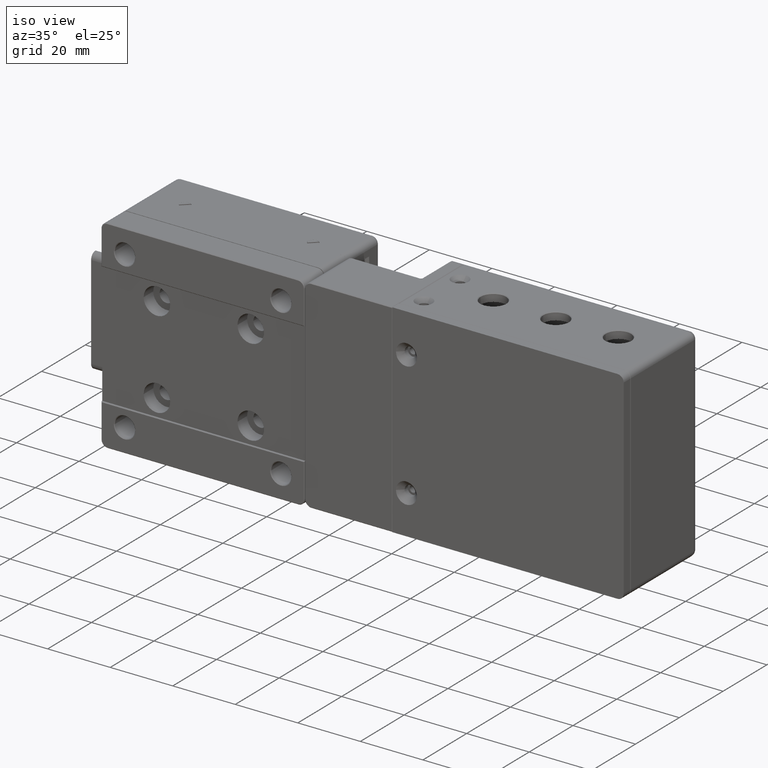
[diagram: clean part render]
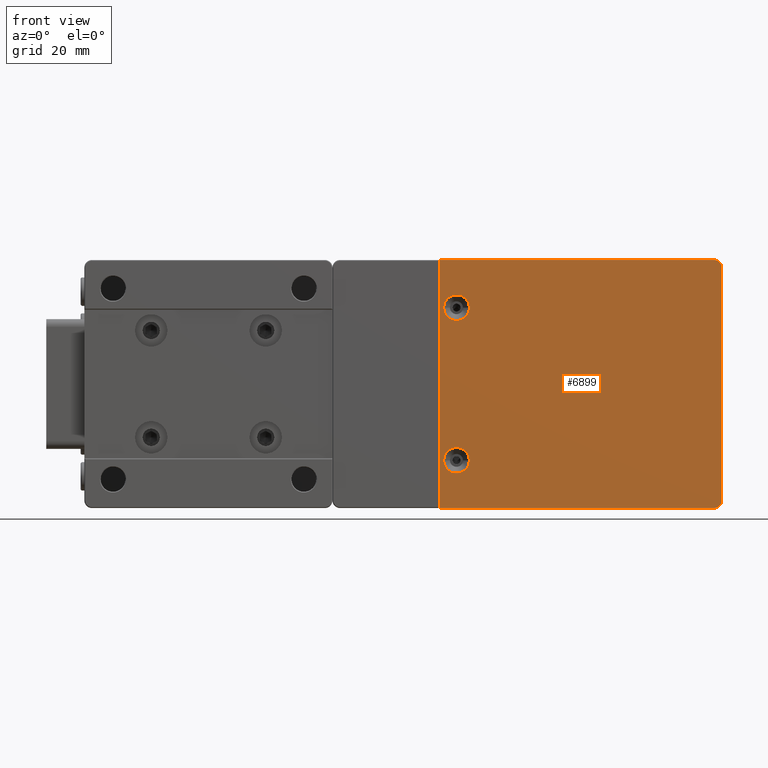
[diagram: tour spotlight — one face highlighted and labeled with its STEP entity id]
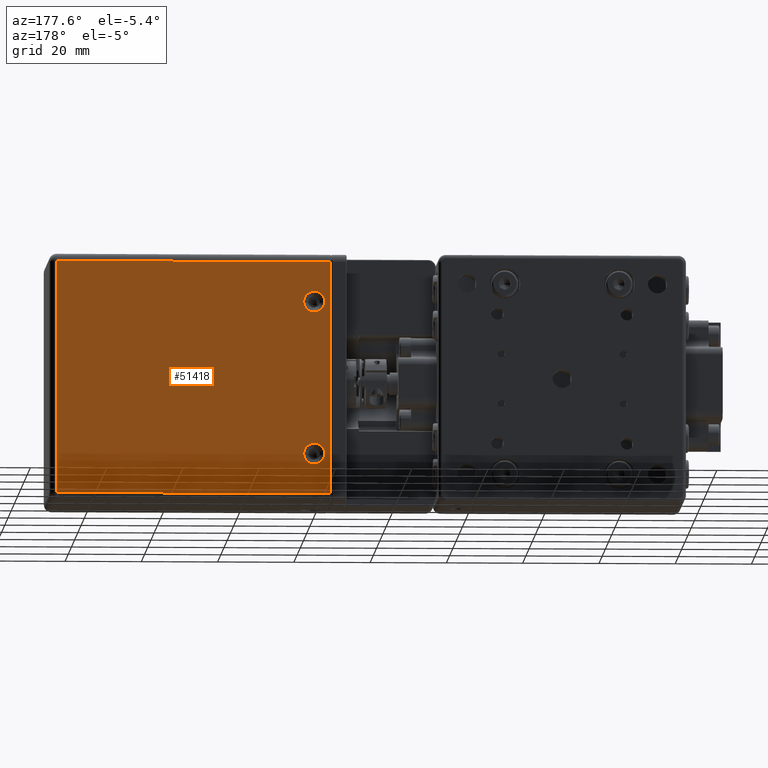
[diagram: tour spotlight — one face highlighted and labeled with its STEP entity id]
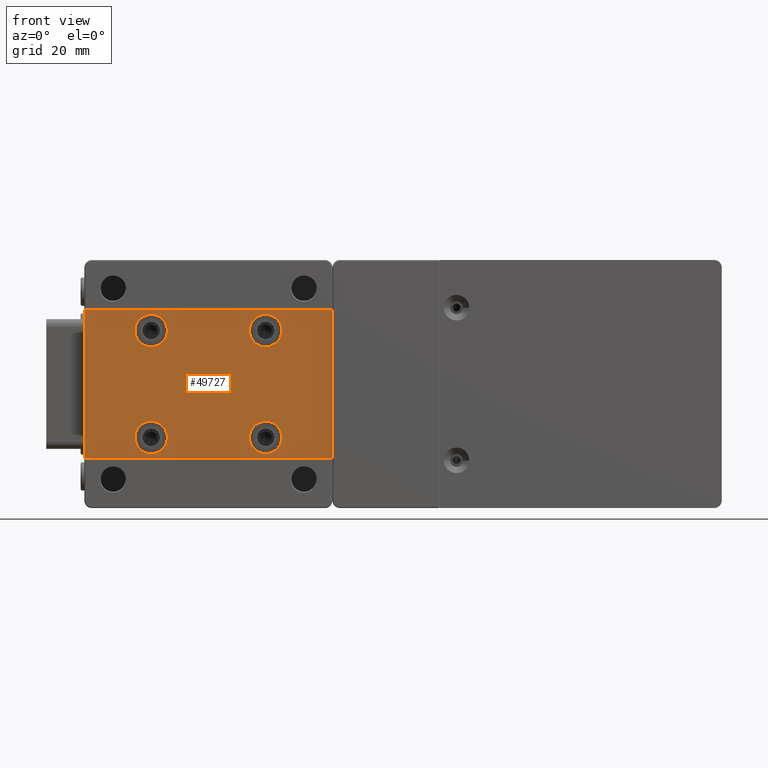
[diagram: tour spotlight — one face highlighted and labeled with its STEP entity id]
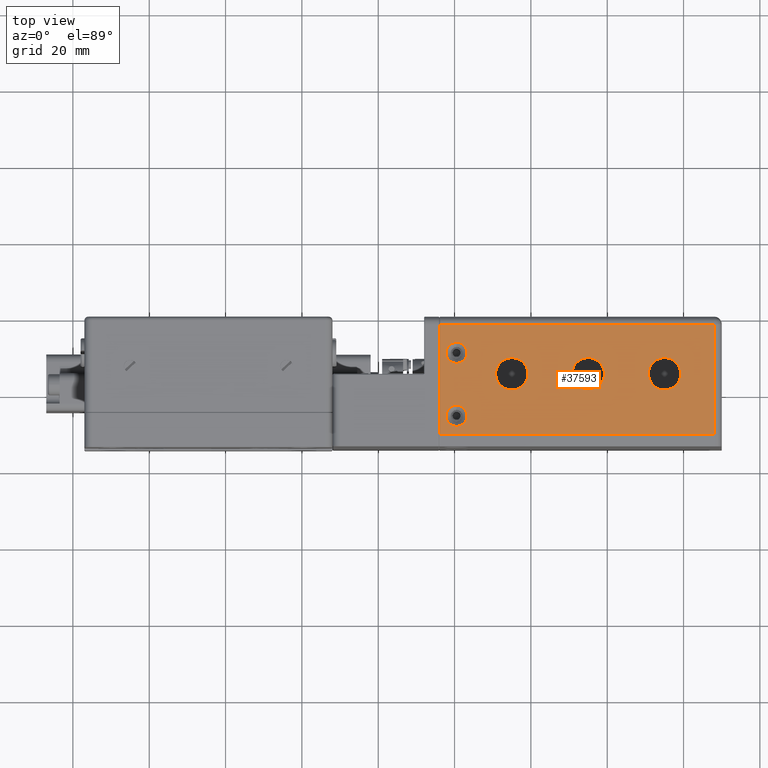
[diagram: tour spotlight — one face highlighted and labeled with its STEP entity id]
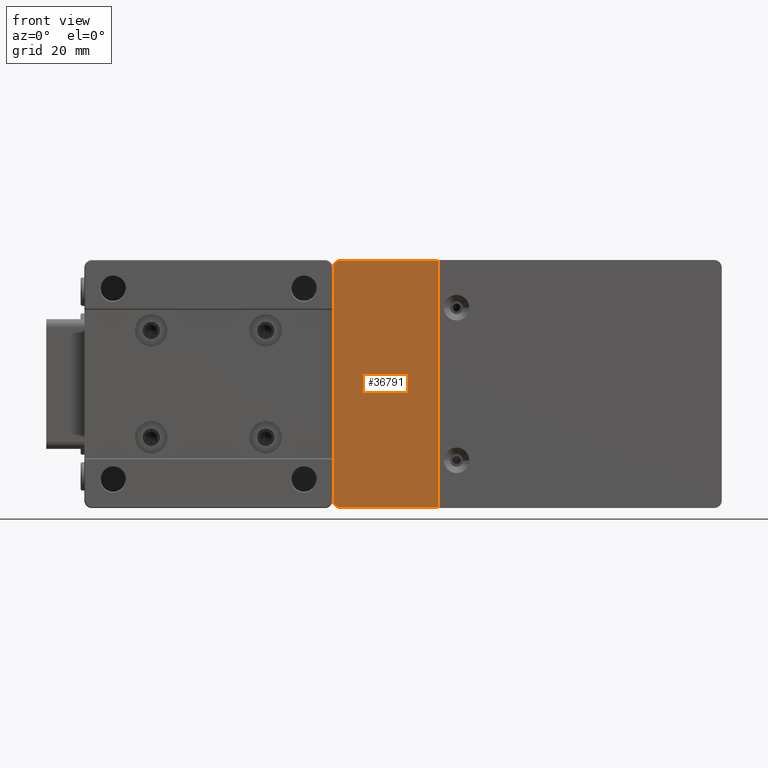
[diagram: tour spotlight — one face highlighted and labeled with its STEP entity id]
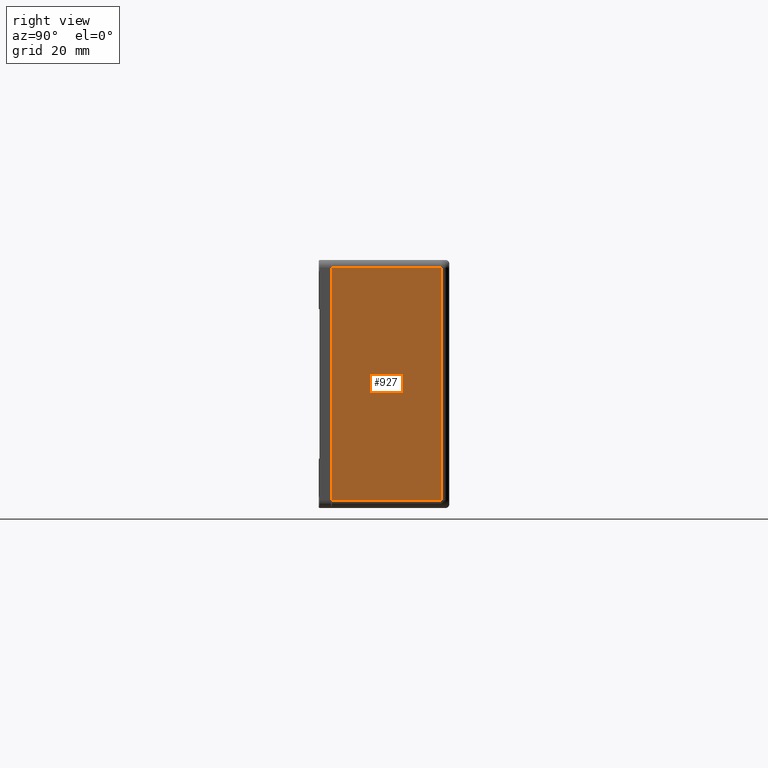
[diagram: tour spotlight — one face highlighted and labeled with its STEP entity id]
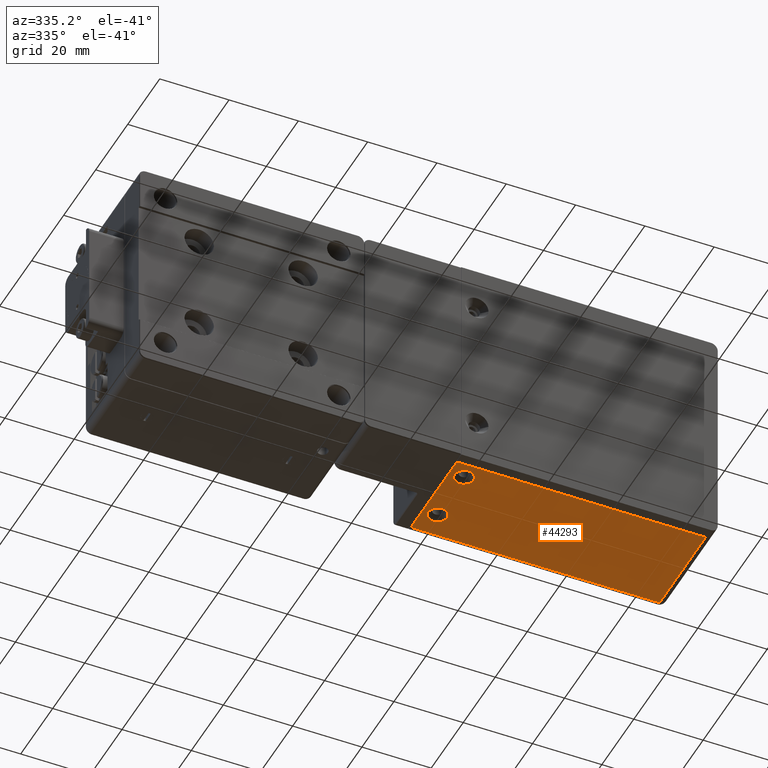
[diagram: tour spotlight — one face highlighted and labeled with its STEP entity id]
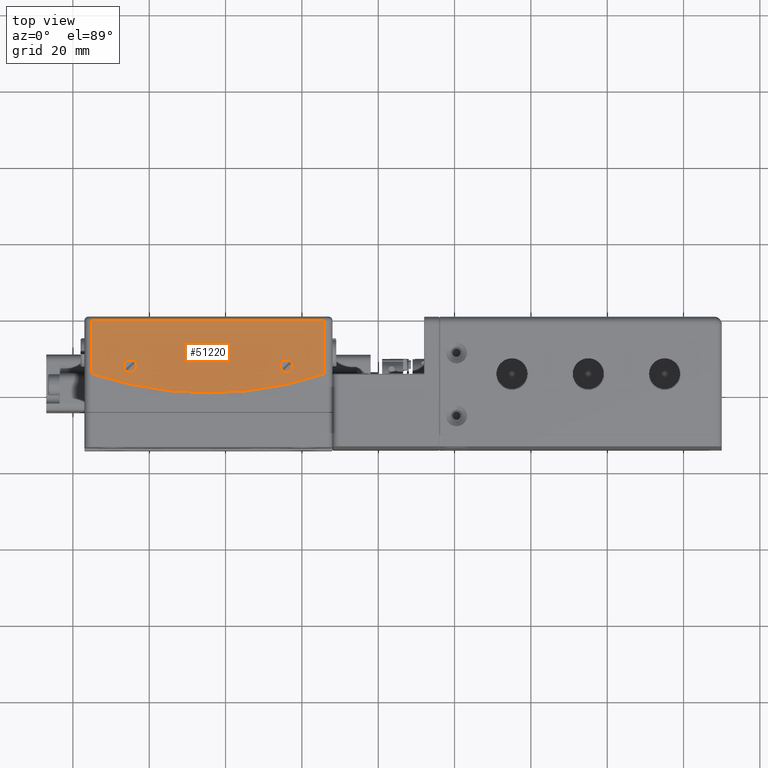
[diagram: tour spotlight — one face highlighted and labeled with its STEP entity id]
A machine part: a face-by-face anatomy tour. The part has 1693 B-rep faces; the first image is the clean iso view, then the 8 largest visible faces are spotlighted one at a time (largest first), each with its STEP entity span.

Face 1 — front view, entity #6899. In plain terms, the highlighted planar face has unit normal (-0, -1, 0).
Definition (entity closure, byte-faithful):
#155 = CARTESIAN_POINT ( 'NONE',  ( -43.98615177131389231, -13.99778983043630021, 32.50000000000000000 ) ) ;
#1594 = DIRECTION ( 'NONE',  ( 0.000000000000000000, -1.000000000000000000, 5.551115123125779621E-17 ) ) ;
#1596 = DIRECTION ( 'NONE',  ( 1.000000000000000000, 0.000000000000000000, 0.000000000000000000 ) ) ;
#2242 = CIRCLE ( 'NONE', #5030, 3.360000000000002096 ) ;
#2417 = DIRECTION ( 'NONE',  ( 1.000000000000000000, 0.000000000000000000, 0.000000000000000000 ) ) ;
#2528 = CARTESIAN_POINT ( 'NONE',  ( 28.01384822868609703, -13.99778983043630021, -32.50000000000000000 ) ) ;
#2554 = DIRECTION ( 'NONE',  ( 0.000000000000000000, -1.000000000000000000, 5.551115123125779621E-17 ) ) ;
#2834 = CARTESIAN_POINT ( 'NONE',  ( -39.48615177131389942, -13.99778983043630021, 20.00000000000000000 ) ) ;
#3246 = ORIENTED_EDGE ( 'NONE', *, *, #16591, .F. ) ;
#4669 = DIRECTION ( 'NONE',  ( 0.000000000000000000, -1.000000000000000000, 5.551115123125779621E-17 ) ) ;
#5030 = AXIS2_PLACEMENT_3D ( 'NONE', #53031, #10092, #1596 ) ;
#5258 = DIRECTION ( 'NONE',  ( -1.000000000000000000, 6.899521432950079395E-17, 0.000000000000000000 ) ) ;
#6013 = LINE ( 'NONE', #31693, #50579 ) ;
#6307 = EDGE_CURVE ( 'NONE', #39944, #41258, #6013, .T. ) ;
#6644 = CIRCLE ( 'NONE', #42727, 3.360000000000002096 ) ;
#6899 = ADVANCED_FACE ( 'NONE', ( #26717, #29845, #42836 ), #30124, .T. ) ;
#7984 = CARTESIAN_POINT ( 'NONE',  ( 28.01384822868609703, -13.99778983043630021, -30.50000000000000000 ) ) ;
#8330 = AXIS2_PLACEMENT_3D ( 'NONE', #53299, #1594, #2417 ) ;
#9165 = DIRECTION ( 'NONE',  ( 0.000000000000000000, -1.000000000000000000, 5.551115123125779621E-17 ) ) ;
#9193 = DIRECTION ( 'NONE',  ( -1.000000000000000000, 6.899521432950079395E-17, 2.375931322540905192E-16 ) ) ;
#9750 = CARTESIAN_POINT ( 'NONE',  ( -43.98615177131389231, -13.99778983043630021, 32.50000000000000000 ) ) ;
#10092 = DIRECTION ( 'NONE',  ( 0.000000000000000000, -1.000000000000000000, 5.551115123125779621E-17 ) ) ;
#10241 = DIRECTION ( 'NONE',  ( 2.149671450824984613E-17, 1.473078375722293951E-32, 1.000000000000000000 ) ) ;
#10297 = LINE ( 'NONE', #9750, #15660 ) ;
#10349 = EDGE_LOOP ( 'NONE', ( #3246, #29565 ) ) ;
#11739 = CARTESIAN_POINT ( 'NONE',  ( -36.12615177131394262, -13.99778983043630021, 20.00000000000000000 ) ) ;
#13259 = CARTESIAN_POINT ( 'NONE',  ( -36.12615177131394262, -13.99778983043630021, -20.00000000000000000 ) ) ;
#14428 = CARTESIAN_POINT ( 'NONE',  ( 30.01384822868609703, -13.99778983043630021, 30.50000000000000000 ) ) ;
#14704 = CARTESIAN_POINT ( 'NONE',  ( -43.98615177131394205, -13.99778983043630021, -32.50000000000000000 ) ) ;
#15016 = ORIENTED_EDGE ( 'NONE', *, *, #24854, .F. ) ;
#15660 = VECTOR ( 'NONE', #9193, 1000.000000000000000 ) ;
#16591 = EDGE_CURVE ( 'NONE', #54430, #22774, #44386, .T. ) ;
#17511 = ORIENTED_EDGE ( 'NONE', *, *, #46911, .T. ) ;
#20669 = DIRECTION ( 'NONE',  ( 0.000000000000000000, -1.000000000000000000, 5.551115123125779621E-17 ) ) ;
#21870 = DIRECTION ( 'NONE',  ( 1.000000000000000000, 0.000000000000000000, 0.000000000000000000 ) ) ;
#22774 = VERTEX_POINT ( 'NONE', #38987 ) ;
#24106 = VERTEX_POINT ( 'NONE', #11739 ) ;
#24418 = CARTESIAN_POINT ( 'NONE',  ( -43.98615177131389231, -13.99778983043630021, 32.50000000000000000 ) ) ;
#24854 = EDGE_CURVE ( 'NONE', #24106, #32540, #34321, .T. ) ;
#25023 = AXIS2_PLACEMENT_3D ( 'NONE', #7984, #20669, #39052 ) ;
#25599 = EDGE_CURVE ( 'NONE', #45171, #35228, #10297, .T. ) ;
#26717 = FACE_BOUND ( 'NONE', #10349, .T. ) ;
#26873 = LINE ( 'NONE', #35653, #46873 ) ;
#27508 = DIRECTION ( 'NONE',  ( 1.000000000000000000, 0.000000000000000000, 0.000000000000000000 ) ) ;
#28914 = CARTESIAN_POINT ( 'NONE',  ( -42.84615177131389885, -13.99778983043630021, 20.00000000000000000 ) ) ;
#29565 = ORIENTED_EDGE ( 'NONE', *, *, #39494, .F. ) ;
#29845 = FACE_BOUND ( 'NONE', #45747, .T. ) ;
#30124 = PLANE ( 'NONE',  #37241 ) ;
#30941 = CARTESIAN_POINT ( 'NONE',  ( 30.01384822868609703, -13.99778983043630021, -30.50000000000000000 ) ) ;
#31693 = CARTESIAN_POINT ( 'NONE',  ( 30.01384822868609703, -13.99778983043630021, 32.50000000000000000 ) ) ;
#32540 = VERTEX_POINT ( 'NONE', #28914 ) ;
#33039 = CARTESIAN_POINT ( 'NONE',  ( -43.98615177131394205, -13.99778983043630021, -32.50000000000000000 ) ) ;
#34321 = CIRCLE ( 'NONE', #51446, 3.360000000000002096 ) ;
#35138 = ORIENTED_EDGE ( 'NONE', *, *, #44066, .T. ) ;
#35148 = ORIENTED_EDGE ( 'NONE', *, *, #43506, .F. ) ;
#35228 = VERTEX_POINT ( 'NONE', #24418 ) ;
#35653 = CARTESIAN_POINT ( 'NONE',  ( -43.98615177131389231, -13.99778983043630021, 32.50000000000000000 ) ) ;
#37105 = ORIENTED_EDGE ( 'NONE', *, *, #50430, .T. ) ;
#37241 = AXIS2_PLACEMENT_3D ( 'NONE', #155, #38605, #5258 ) ;
#38605 = DIRECTION ( 'NONE',  ( -6.899521432950079395E-17, -1.000000000000000000, 5.551115123125779621E-17 ) ) ;
#38987 = CARTESIAN_POINT ( 'NONE',  ( -42.84615177131394859, -13.99778983043630021, -20.00000000000000000 ) ) ;
#39052 = DIRECTION ( 'NONE',  ( 1.000000000000000000, 0.000000000000000000, 0.000000000000000000 ) ) ;
#39494 = EDGE_CURVE ( 'NONE', #22774, #54430, #2242, .T. ) ;
#39944 = VERTEX_POINT ( 'NONE', #30941 ) ;
#40156 = LINE ( 'NONE', #14704, #54499 ) ;
#41106 = EDGE_LOOP ( 'NONE', ( #35138, #17511, #48112, #43823, #47395, #37105 ) ) ;
#41258 = VERTEX_POINT ( 'NONE', #14428 ) ;
#42476 = EDGE_CURVE ( 'NONE', #41258, #45171, #51706, .T. ) ;
#42727 = AXIS2_PLACEMENT_3D ( 'NONE', #51002, #4669, #21870 ) ;
#42836 = FACE_OUTER_BOUND ( 'NONE', #41106, .T. ) ;
#43506 = EDGE_CURVE ( 'NONE', #32540, #24106, #6644, .T. ) ;
#43823 = ORIENTED_EDGE ( 'NONE', *, *, #42476, .T. ) ;
#44066 = EDGE_CURVE ( 'NONE', #47793, #44309, #40156, .T. ) ;
#44103 = DIRECTION ( 'NONE',  ( -1.125364624060445919E-16, -8.449476838510881159E-33, -1.000000000000000000 ) ) ;
#44309 = VERTEX_POINT ( 'NONE', #2528 ) ;
#44386 = CIRCLE ( 'NONE', #8330, 3.360000000000002096 ) ;
#45171 = VERTEX_POINT ( 'NONE', #53829 ) ;
#45747 = EDGE_LOOP ( 'NONE', ( #15016, #35148 ) ) ;
#45788 = DIRECTION ( 'NONE',  ( 1.000000000000000000, 0.000000000000000000, 0.000000000000000000 ) ) ;
#46873 = VECTOR ( 'NONE', #44103, 1000.000000000000000 ) ;
#46911 = EDGE_CURVE ( 'NONE', #44309, #39944, #51204, .T. ) ;
#47395 = ORIENTED_EDGE ( 'NONE', *, *, #25599, .T. ) ;
#47793 = VERTEX_POINT ( 'NONE', #33039 ) ;
#48112 = ORIENTED_EDGE ( 'NONE', *, *, #6307, .T. ) ;
#48694 = CARTESIAN_POINT ( 'NONE',  ( 28.01384822868609703, -13.99778983043630021, 30.50000000000000000 ) ) ;
#48995 = AXIS2_PLACEMENT_3D ( 'NONE', #48694, #9165, #27508 ) ;
#50430 = EDGE_CURVE ( 'NONE', #35228, #47793, #26873, .T. ) ;
#50579 = VECTOR ( 'NONE', #10241, 1000.000000000000000 ) ;
#51002 = CARTESIAN_POINT ( 'NONE',  ( -39.48615177131389942, -13.99778983043630021, 20.00000000000000000 ) ) ;
#51204 = CIRCLE ( 'NONE', #25023, 2.000000000000001776 ) ;
#51446 = AXIS2_PLACEMENT_3D ( 'NONE', #2834, #2554, #45788 ) ;
#51706 = CIRCLE ( 'NONE', #48995, 2.000000000000001776 ) ;
#53031 = CARTESIAN_POINT ( 'NONE',  ( -39.48615177131394915, -13.99778983043630021, -20.00000000000000000 ) ) ;
#53299 = CARTESIAN_POINT ( 'NONE',  ( -39.48615177131394915, -13.99778983043630021, -20.00000000000000000 ) ) ;
#53409 = DIRECTION ( 'NONE',  ( 1.000000000000000000, -6.899521432950079395E-17, -2.375931322540905192E-16 ) ) ;
#53829 = CARTESIAN_POINT ( 'NONE',  ( 28.01384822868609703, -13.99778983043630021, 32.50000000000000000 ) ) ;
#54430 = VERTEX_POINT ( 'NONE', #13259 ) ;
#54499 = VECTOR ( 'NONE', #53409, 1000.000000000000000 ) ;

Face 2 — auxiliary view, entity #51418. In plain terms, the highlighted planar face has unit normal (0, 1, 0).
Definition (entity closure, byte-faithful):
#410 = PLANE ( 'NONE',  #36112 ) ;
#964 = ORIENTED_EDGE ( 'NONE', *, *, #21538, .F. ) ;
#1533 = DIRECTION ( 'NONE',  ( 0.000000000000000000, 0.000000000000000000, -1.000000000000000000 ) ) ;
#2162 = CARTESIAN_POINT ( 'NONE',  ( -43.78615177131394631, 20.00221016956369979, -30.50000000000000000 ) ) ;
#2873 = CARTESIAN_POINT ( 'NONE',  ( -43.78615177131394631, 20.00221016956369979, 30.50000000000000000 ) ) ;
#4135 = CIRCLE ( 'NONE', #52855, 2.749999999999999112 ) ;
#4198 = DIRECTION ( 'NONE',  ( 5.454986835620259508E-17, 1.000000000000000000, 0.000000000000000000 ) ) ;
#4339 = EDGE_CURVE ( 'NONE', #8175, #8224, #10252, .T. ) ;
#5124 = VERTEX_POINT ( 'NONE', #46024 ) ;
#7142 = EDGE_CURVE ( 'NONE', #5124, #8175, #16482, .T. ) ;
#8052 = FACE_OUTER_BOUND ( 'NONE', #40876, .T. ) ;
#8175 = VERTEX_POINT ( 'NONE', #23918 ) ;
#8224 = VERTEX_POINT ( 'NONE', #2162 ) ;
#8626 = DIRECTION ( 'NONE',  ( 0.000000000000000000, 6.318674922894530326E-17, -1.000000000000000000 ) ) ;
#9428 = DIRECTION ( 'NONE',  ( -7.285838599102588564E-17, -6.318674922894530326E-17, 1.000000000000000000 ) ) ;
#10079 = EDGE_LOOP ( 'NONE', ( #34741, #34110 ) ) ;
#10252 = LINE ( 'NONE', #52921, #51889 ) ;
#10743 = VERTEX_POINT ( 'NONE', #41915 ) ;
#11294 = CIRCLE ( 'NONE', #36581, 2.749999999999999112 ) ;
#12490 = VECTOR ( 'NONE', #9428, 1000.000000000000000 ) ;
#12716 = DIRECTION ( 'NONE',  ( 0.000000000000000000, 0.000000000000000000, -1.000000000000000000 ) ) ;
#13322 = ORIENTED_EDGE ( 'NONE', *, *, #33542, .T. ) ;
#13377 = ORIENTED_EDGE ( 'NONE', *, *, #39918, .F. ) ;
#14577 = DIRECTION ( 'NONE',  ( 5.454986835620259508E-17, 1.000000000000000000, 0.000000000000000000 ) ) ;
#16097 = CARTESIAN_POINT ( 'NONE',  ( -39.48615177131389942, 20.00221016956369979, 22.75000000000000000 ) ) ;
#16482 = LINE ( 'NONE', #33441, #17434 ) ;
#16924 = CARTESIAN_POINT ( 'NONE',  ( -39.48615177131389942, 20.00221016956369979, 17.25000000000000000 ) ) ;
#17434 = VECTOR ( 'NONE', #41349, 1000.000000000000000 ) ;
#21538 = EDGE_CURVE ( 'NONE', #35892, #40371, #47101, .T. ) ;
#21589 = FACE_BOUND ( 'NONE', #10079, .T. ) ;
#21953 = CARTESIAN_POINT ( 'NONE',  ( -39.48615177131389942, 20.00221016956369979, -20.00000000000000000 ) ) ;
#22714 = AXIS2_PLACEMENT_3D ( 'NONE', #54101, #14577, #28410 ) ;
#23725 = VECTOR ( 'NONE', #47938, 1000.000000000000000 ) ;
#23918 = CARTESIAN_POINT ( 'NONE',  ( 28.01384822868609703, 20.00221016956369979, -30.50000000000000000 ) ) ;
#27986 = CARTESIAN_POINT ( 'NONE',  ( -39.48615177131389942, 20.00221016956369979, -17.25000000000000000 ) ) ;
#28410 = DIRECTION ( 'NONE',  ( 0.000000000000000000, 0.000000000000000000, -1.000000000000000000 ) ) ;
#28939 = EDGE_LOOP ( 'NONE', ( #13377, #964 ) ) ;
#30989 = LINE ( 'NONE', #39199, #23725 ) ;
#31399 = AXIS2_PLACEMENT_3D ( 'NONE', #34475, #34195, #12716 ) ;
#33175 = CIRCLE ( 'NONE', #31399, 2.749999999999999112 ) ;
#33441 = CARTESIAN_POINT ( 'NONE',  ( 28.01384822868609703, 20.00221016956369979, -32.50000000000000000 ) ) ;
#33542 = EDGE_CURVE ( 'NONE', #8224, #41022, #34869, .T. ) ;
#34110 = ORIENTED_EDGE ( 'NONE', *, *, #47345, .F. ) ;
#34195 = DIRECTION ( 'NONE',  ( 5.454986835620259508E-17, 1.000000000000000000, 0.000000000000000000 ) ) ;
#34475 = CARTESIAN_POINT ( 'NONE',  ( -39.48615177131389942, 20.00221016956369979, -20.00000000000000000 ) ) ;
#34741 = ORIENTED_EDGE ( 'NONE', *, *, #39391, .F. ) ;
#34869 = LINE ( 'NONE', #42762, #12490 ) ;
#35892 = VERTEX_POINT ( 'NONE', #16097 ) ;
#36112 = AXIS2_PLACEMENT_3D ( 'NONE', #38845, #55798, #8626 ) ;
#36581 = AXIS2_PLACEMENT_3D ( 'NONE', #21953, #4198, #38655 ) ;
#37099 = EDGE_CURVE ( 'NONE', #41022, #5124, #30989, .T. ) ;
#37565 = VERTEX_POINT ( 'NONE', #27986 ) ;
#38655 = DIRECTION ( 'NONE',  ( 0.000000000000000000, 0.000000000000000000, -1.000000000000000000 ) ) ;
#38845 = CARTESIAN_POINT ( 'NONE',  ( -43.98615177131394205, 20.00221016956369979, 32.50000000000000000 ) ) ;
#39199 = CARTESIAN_POINT ( 'NONE',  ( 30.01384822868609703, 20.00221016956369979, 30.50000000000000000 ) ) ;
#39391 = EDGE_CURVE ( 'NONE', #10743, #37565, #11294, .T. ) ;
#39640 = DIRECTION ( 'NONE',  ( -1.000000000000000000, 6.463462497152439677E-17, 5.049451847640599297E-17 ) ) ;
#39690 = CARTESIAN_POINT ( 'NONE',  ( -39.48615177131389942, 20.00221016956369979, 20.00000000000000000 ) ) ;
#39918 = EDGE_CURVE ( 'NONE', #40371, #35892, #4135, .T. ) ;
#40271 = ORIENTED_EDGE ( 'NONE', *, *, #37099, .T. ) ;
#40371 = VERTEX_POINT ( 'NONE', #16924 ) ;
#40876 = EDGE_LOOP ( 'NONE', ( #51992, #13322, #40271, #50686 ) ) ;
#41022 = VERTEX_POINT ( 'NONE', #2873 ) ;
#41349 = DIRECTION ( 'NONE',  ( 7.285838599102588564E-17, 6.318674922894530326E-17, -1.000000000000000000 ) ) ;
#41915 = CARTESIAN_POINT ( 'NONE',  ( -39.48615177131389942, 20.00221016956369979, -22.75000000000000000 ) ) ;
#42762 = CARTESIAN_POINT ( 'NONE',  ( -43.78615177131394631, 20.00221016956369979, 30.50000000000000000 ) ) ;
#46024 = CARTESIAN_POINT ( 'NONE',  ( 28.01384822868609703, 20.00221016956369979, 30.50000000000000000 ) ) ;
#47101 = CIRCLE ( 'NONE', #22714, 2.749999999999999112 ) ;
#47345 = EDGE_CURVE ( 'NONE', #37565, #10743, #33175, .T. ) ;
#47938 = DIRECTION ( 'NONE',  ( 1.000000000000000000, -6.463462497152439677E-17, 1.457847468743243974E-17 ) ) ;
#48176 = DIRECTION ( 'NONE',  ( 5.454986835620259508E-17, 1.000000000000000000, 0.000000000000000000 ) ) ;
#50686 = ORIENTED_EDGE ( 'NONE', *, *, #7142, .T. ) ;
#51001 = FACE_BOUND ( 'NONE', #28939, .T. ) ;
#51418 = ADVANCED_FACE ( 'NONE', ( #21589, #51001, #8052 ), #410, .T. ) ;
#51889 = VECTOR ( 'NONE', #39640, 1000.000000000000000 ) ;
#51992 = ORIENTED_EDGE ( 'NONE', *, *, #4339, .T. ) ;
#52855 = AXIS2_PLACEMENT_3D ( 'NONE', #39690, #48176, #1533 ) ;
#52921 = CARTESIAN_POINT ( 'NONE',  ( -43.98615177131389231, 20.00221016956369979, -30.50000000000000000 ) ) ;
#54101 = CARTESIAN_POINT ( 'NONE',  ( -39.48615177131389942, 20.00221016956369979, 20.00000000000000000 ) ) ;
#55798 = DIRECTION ( 'NONE',  ( 5.454986835620259508E-17, 1.000000000000000000, 6.318674922894530326E-17 ) ) ;

Face 3 — front view, entity #49727. In plain terms, the highlighted planar face has unit normal (0, -1, 0).
Definition (entity closure, byte-faithful):
#338 = AXIS2_PLACEMENT_3D ( 'NONE', #54631, #15083, #11675 ) ;
#414 = DIRECTION ( 'NONE',  ( 5.436691348603590719E-16, 0.000000000000000000, 1.000000000000000000 ) ) ;
#723 = DIRECTION ( 'NONE',  ( -1.000000000000000000, 0.000000000000000000, 8.163404592832026077E-16 ) ) ;
#1052 = CIRCLE ( 'NONE', #41652, 4.250000000000003553 ) ;
#1113 = AXIS2_PLACEMENT_3D ( 'NONE', #23524, #28337, #6324 ) ;
#1181 = ORIENTED_EDGE ( 'NONE', *, *, #21820, .T. ) ;
#1576 = VERTEX_POINT ( 'NONE', #39653 ) ;
#2821 = CARTESIAN_POINT ( 'NONE',  ( -65.35622819694600594, -13.69778983043627818, 19.50000000000000000 ) ) ;
#2877 = ORIENTED_EDGE ( 'NONE', *, *, #52812, .F. ) ;
#2943 = DIRECTION ( 'NONE',  ( 0.000000000000000000, -1.000000000000000000, 0.000000000000000000 ) ) ;
#3820 = EDGE_CURVE ( 'NONE', #5551, #53945, #38878, .T. ) ;
#3998 = EDGE_LOOP ( 'NONE', ( #32666, #41163 ) ) ;
#5129 = VERTEX_POINT ( 'NONE', #42065 ) ;
#5551 = VERTEX_POINT ( 'NONE', #20971 ) ;
#6324 = DIRECTION ( 'NONE',  ( -1.000000000000000000, 0.000000000000000000, 8.163404592832026077E-16 ) ) ;
#7053 = AXIS2_PLACEMENT_3D ( 'NONE', #7670, #37608, #28844 ) ;
#7289 = CIRCLE ( 'NONE', #19869, 4.250000000000003553 ) ;
#7670 = CARTESIAN_POINT ( 'NONE',  ( -89.48615177131399889, -13.69778983043627818, -14.00000000000000000 ) ) ;
#9761 = CIRCLE ( 'NONE', #7053, 4.250000000000003553 ) ;
#9946 = CARTESIAN_POINT ( 'NONE',  ( -119.4861517713139989, -13.69778983043627818, 14.00000000000000000 ) ) ;
#11060 = DIRECTION ( 'NONE',  ( 0.000000000000000000, -1.000000000000000000, 0.000000000000000000 ) ) ;
#11377 = EDGE_LOOP ( 'NONE', ( #2877, #52633 ) ) ;
#11675 = DIRECTION ( 'NONE',  ( -1.000000000000000000, 0.000000000000000000, 8.163404592832026077E-16 ) ) ;
#12574 = VERTEX_POINT ( 'NONE', #38854 ) ;
#12609 = DIRECTION ( 'NONE',  ( -1.000000000000000000, 0.000000000000000000, 6.661338147750940229E-16 ) ) ;
#14070 = DIRECTION ( 'NONE',  ( -1.000000000000000000, 0.000000000000000000, 8.163404592832026077E-16 ) ) ;
#14191 = DIRECTION ( 'NONE',  ( -1.000000000000000000, 0.000000000000000000, 8.163404592832026077E-16 ) ) ;
#14630 = DIRECTION ( 'NONE',  ( -2.391249591500340008E-16, 0.000000000000000000, -1.000000000000000000 ) ) ;
#15083 = DIRECTION ( 'NONE',  ( 0.000000000000000000, -1.000000000000000000, 0.000000000000000000 ) ) ;
#15613 = CARTESIAN_POINT ( 'NONE',  ( -115.2361517713139989, -13.69778983043627818, -14.00000000000000000 ) ) ;
#15882 = EDGE_CURVE ( 'NONE', #35438, #25943, #49842, .T. ) ;
#16684 = CARTESIAN_POINT ( 'NONE',  ( -123.7361517713139989, -13.69778983043627818, 14.00000000000000000 ) ) ;
#18296 = VERTEX_POINT ( 'NONE', #34573 ) ;
#19662 = EDGE_CURVE ( 'NONE', #24430, #12574, #23557, .T. ) ;
#19800 = DIRECTION ( 'NONE',  ( -1.000000000000000000, 0.000000000000000000, 8.163404592832026077E-16 ) ) ;
#19869 = AXIS2_PLACEMENT_3D ( 'NONE', #9946, #52901, #14191 ) ;
#20172 = DIRECTION ( 'NONE',  ( 0.000000000000000000, 0.000000000000000000, -1.000000000000000000 ) ) ;
#20728 = FACE_BOUND ( 'NONE', #11377, .T. ) ;
#20971 = CARTESIAN_POINT ( 'NONE',  ( -71.98615177131399889, -13.69778983043627818, -19.50000000000000000 ) ) ;
#21820 = EDGE_CURVE ( 'NONE', #5551, #5129, #21871, .T. ) ;
#21843 = VERTEX_POINT ( 'NONE', #22161 ) ;
#21871 = LINE ( 'NONE', #52680, #53418 ) ;
#21916 = ORIENTED_EDGE ( 'NONE', *, *, #31801, .F. ) ;
#22038 = EDGE_CURVE ( 'NONE', #44374, #18296, #38103, .T. ) ;
#22161 = CARTESIAN_POINT ( 'NONE',  ( -136.9861517713140131, -13.69778983043627818, 19.50000000000000000 ) ) ;
#22237 = DIRECTION ( 'NONE',  ( 0.000000000000000000, -1.000000000000000000, 0.000000000000000000 ) ) ;
#23524 = CARTESIAN_POINT ( 'NONE',  ( -89.48615177131399889, -13.69778983043627818, -14.00000000000000000 ) ) ;
#23557 = CIRCLE ( 'NONE', #28088, 4.250000000000003553 ) ;
#24123 = CARTESIAN_POINT ( 'NONE',  ( -106.4950540976766149, -13.69778983043627818, 0.1746871588142255016 ) ) ;
#24430 = VERTEX_POINT ( 'NONE', #53226 ) ;
#25685 = EDGE_CURVE ( 'NONE', #12574, #24430, #36443, .T. ) ;
#25943 = VERTEX_POINT ( 'NONE', #54563 ) ;
#26238 = CARTESIAN_POINT ( 'NONE',  ( -85.23615177131399889, -13.69778983043627818, -14.00000000000000000 ) ) ;
#26950 = AXIS2_PLACEMENT_3D ( 'NONE', #24123, #2943, #20172 ) ;
#27316 = AXIS2_PLACEMENT_3D ( 'NONE', #37343, #11060, #19800 ) ;
#28088 = AXIS2_PLACEMENT_3D ( 'NONE', #39448, #49234, #723 ) ;
#28105 = VERTEX_POINT ( 'NONE', #16684 ) ;
#28172 = LINE ( 'NONE', #53336, #34489 ) ;
#28337 = DIRECTION ( 'NONE',  ( 0.000000000000000000, -1.000000000000000000, 0.000000000000000000 ) ) ;
#28818 = EDGE_CURVE ( 'NONE', #1576, #28105, #7289, .T. ) ;
#28844 = DIRECTION ( 'NONE',  ( -1.000000000000000000, 0.000000000000000000, 8.163404592832026077E-16 ) ) ;
#29033 = ORIENTED_EDGE ( 'NONE', *, *, #30176, .F. ) ;
#29252 = ORIENTED_EDGE ( 'NONE', *, *, #22038, .F. ) ;
#29402 = DIRECTION ( 'NONE',  ( 1.000000000000000000, 0.000000000000000000, -6.661338147750940229E-16 ) ) ;
#30176 = EDGE_CURVE ( 'NONE', #21843, #5129, #42663, .T. ) ;
#30450 = DIRECTION ( 'NONE',  ( -1.000000000000000000, 0.000000000000000000, 8.163404592832026077E-16 ) ) ;
#31801 = EDGE_CURVE ( 'NONE', #18296, #44374, #9761, .T. ) ;
#32666 = ORIENTED_EDGE ( 'NONE', *, *, #33288, .F. ) ;
#33288 = EDGE_CURVE ( 'NONE', #25943, #35438, #46850, .T. ) ;
#33750 = FACE_BOUND ( 'NONE', #34068, .T. ) ;
#34068 = EDGE_LOOP ( 'NONE', ( #39771, #50029 ) ) ;
#34489 = VECTOR ( 'NONE', #14630, 1000.000000000000000 ) ;
#34573 = CARTESIAN_POINT ( 'NONE',  ( -93.73615177131399889, -13.69778983043627818, -14.00000000000000000 ) ) ;
#34938 = CARTESIAN_POINT ( 'NONE',  ( -67.01575620568030445, -13.69778983043627818, -19.50000000000000000 ) ) ;
#35438 = VERTEX_POINT ( 'NONE', #15613 ) ;
#35550 = CARTESIAN_POINT ( 'NONE',  ( -119.4861517713139989, -13.69778983043627818, -14.00000000000000000 ) ) ;
#35594 = VECTOR ( 'NONE', #12609, 1000.000000000000000 ) ;
#36345 = EDGE_CURVE ( 'NONE', #21843, #53945, #28172, .T. ) ;
#36443 = CIRCLE ( 'NONE', #338, 4.250000000000003553 ) ;
#36565 = CARTESIAN_POINT ( 'NONE',  ( -136.9861517713140131, -13.69778983043627818, -19.50000000000000000 ) ) ;
#37343 = CARTESIAN_POINT ( 'NONE',  ( -119.4861517713139989, -13.69778983043627818, -14.00000000000000000 ) ) ;
#37608 = DIRECTION ( 'NONE',  ( 0.000000000000000000, -1.000000000000000000, 0.000000000000000000 ) ) ;
#37985 = FACE_BOUND ( 'NONE', #3998, .T. ) ;
#38103 = CIRCLE ( 'NONE', #1113, 4.250000000000003553 ) ;
#38854 = CARTESIAN_POINT ( 'NONE',  ( -93.73615177131399889, -13.69778983043627818, 14.00000000000000000 ) ) ;
#38878 = LINE ( 'NONE', #34938, #35594 ) ;
#39448 = CARTESIAN_POINT ( 'NONE',  ( -89.48615177131399889, -13.69778983043627818, 14.00000000000000000 ) ) ;
#39653 = CARTESIAN_POINT ( 'NONE',  ( -115.2361517713139989, -13.69778983043627818, 14.00000000000000000 ) ) ;
#39771 = ORIENTED_EDGE ( 'NONE', *, *, #25685, .F. ) ;
#41163 = ORIENTED_EDGE ( 'NONE', *, *, #15882, .F. ) ;
#41652 = AXIS2_PLACEMENT_3D ( 'NONE', #47684, #22237, #30450 ) ;
#41941 = FACE_BOUND ( 'NONE', #53455, .T. ) ;
#42065 = CARTESIAN_POINT ( 'NONE',  ( -71.98615177131399889, -13.69778983043627818, 19.50000000000000000 ) ) ;
#42498 = PLANE ( 'NONE',  #26950 ) ;
#42663 = LINE ( 'NONE', #2821, #44265 ) ;
#44265 = VECTOR ( 'NONE', #29402, 1000.000000000000000 ) ;
#44374 = VERTEX_POINT ( 'NONE', #26238 ) ;
#46850 = CIRCLE ( 'NONE', #55885, 4.250000000000003553 ) ;
#47684 = CARTESIAN_POINT ( 'NONE',  ( -119.4861517713139989, -13.69778983043627818, 14.00000000000000000 ) ) ;
#48809 = DIRECTION ( 'NONE',  ( 0.000000000000000000, -1.000000000000000000, 0.000000000000000000 ) ) ;
#49234 = DIRECTION ( 'NONE',  ( 0.000000000000000000, -1.000000000000000000, 0.000000000000000000 ) ) ;
#49727 = ADVANCED_FACE ( 'NONE', ( #33750, #20728, #37985, #41941, #50141 ), #42498, .T. ) ;
#49842 = CIRCLE ( 'NONE', #27316, 4.250000000000003553 ) ;
#50029 = ORIENTED_EDGE ( 'NONE', *, *, #19662, .F. ) ;
#50141 = FACE_OUTER_BOUND ( 'NONE', #53230, .T. ) ;
#51336 = ORIENTED_EDGE ( 'NONE', *, *, #3820, .F. ) ;
#51754 = ORIENTED_EDGE ( 'NONE', *, *, #36345, .T. ) ;
#52633 = ORIENTED_EDGE ( 'NONE', *, *, #28818, .F. ) ;
#52680 = CARTESIAN_POINT ( 'NONE',  ( -71.98615177131399889, -13.69778983043627818, -32.50000000000000000 ) ) ;
#52812 = EDGE_CURVE ( 'NONE', #28105, #1576, #1052, .T. ) ;
#52901 = DIRECTION ( 'NONE',  ( 0.000000000000000000, -1.000000000000000000, 0.000000000000000000 ) ) ;
#53226 = CARTESIAN_POINT ( 'NONE',  ( -85.23615177131399889, -13.69778983043627818, 14.00000000000000000 ) ) ;
#53230 = EDGE_LOOP ( 'NONE', ( #1181, #29033, #51754, #51336 ) ) ;
#53336 = CARTESIAN_POINT ( 'NONE',  ( -136.9861517713140131, -13.69778983043627818, -32.50000000000000000 ) ) ;
#53418 = VECTOR ( 'NONE', #414, 1000.000000000000000 ) ;
#53455 = EDGE_LOOP ( 'NONE', ( #21916, #29252 ) ) ;
#53945 = VERTEX_POINT ( 'NONE', #36565 ) ;
#54563 = CARTESIAN_POINT ( 'NONE',  ( -123.7361517713139989, -13.69778983043627818, -14.00000000000000000 ) ) ;
#54631 = CARTESIAN_POINT ( 'NONE',  ( -89.48615177131399889, -13.69778983043627818, 14.00000000000000000 ) ) ;
#55885 = AXIS2_PLACEMENT_3D ( 'NONE', #35550, #48809, #14070 ) ;

Face 4 — top view, entity #37593. In plain terms, the highlighted planar face has unit normal (0, 0, -1).
Definition (entity closure, byte-faithful):
#225 = ORIENTED_EDGE ( 'NONE', *, *, #20706, .T. ) ;
#391 = ORIENTED_EDGE ( 'NONE', *, *, #24596, .T. ) ;
#528 = CARTESIAN_POINT ( 'NONE',  ( -39.48615177131394915, 7.752210169563710451, 32.50000000000000000 ) ) ;
#1093 = ORIENTED_EDGE ( 'NONE', *, *, #42905, .T. ) ;
#1780 = AXIS2_PLACEMENT_3D ( 'NONE', #5503, #34913, #30646 ) ;
#2543 = DIRECTION ( 'NONE',  ( -1.000000000000000000, 0.000000000000000000, 0.000000000000000000 ) ) ;
#2656 = DIRECTION ( 'NONE',  ( -7.285838599102588564E-17, 0.000000000000000000, 1.000000000000000000 ) ) ;
#2735 = EDGE_LOOP ( 'NONE', ( #225, #44372 ) ) ;
#3012 = EDGE_LOOP ( 'NONE', ( #38624, #43476 ) ) ;
#3037 = DIRECTION ( 'NONE',  ( -1.000000000000000000, 0.000000000000000000, 0.000000000000000000 ) ) ;
#3094 = VERTEX_POINT ( 'NONE', #39971 ) ;
#3109 = AXIS2_PLACEMENT_3D ( 'NONE', #46339, #37866, #41531 ) ;
#3234 = VERTEX_POINT ( 'NONE', #33166 ) ;
#4611 = CARTESIAN_POINT ( 'NONE',  ( -4.986151771313919845, 9.252210169563689135, 32.50000000000000000 ) ) ;
#4791 = CARTESIAN_POINT ( 'NONE',  ( -43.98615177131394205, -10.79778983043629914, 32.50000000000000000 ) ) ;
#5237 = EDGE_CURVE ( 'NONE', #53297, #34836, #16110, .T. ) ;
#5257 = VERTEX_POINT ( 'NONE', #528 ) ;
#5360 = AXIS2_PLACEMENT_3D ( 'NONE', #11157, #2656, #6655 ) ;
#5503 = CARTESIAN_POINT ( 'NONE',  ( -4.986151771313919845, 5.002210169563710451, 32.50000000000000000 ) ) ;
#5525 = CIRCLE ( 'NONE', #30774, 4.250000000000045297 ) ;
#6089 = VERTEX_POINT ( 'NONE', #33164 ) ;
#6655 = DIRECTION ( 'NONE',  ( 0.000000000000000000, 1.000000000000000000, 0.000000000000000000 ) ) ;
#8395 = EDGE_LOOP ( 'NONE', ( #10016, #1093 ) ) ;
#8438 = CARTESIAN_POINT ( 'NONE',  ( 15.01384822868605085, 0.7522101695636669305, 32.50000000000000000 ) ) ;
#8530 = CIRCLE ( 'NONE', #3109, 4.250000000000000000 ) ;
#8608 = EDGE_CURVE ( 'NONE', #34836, #53297, #27382, .T. ) ;
#9453 = DIRECTION ( 'NONE',  ( 5.454986835620259508E-17, 1.000000000000000000, 1.736809572478229798E-16 ) ) ;
#10016 = ORIENTED_EDGE ( 'NONE', *, *, #24275, .T. ) ;
#10555 = DIRECTION ( 'NONE',  ( -1.000000000000000000, 0.000000000000000000, 0.000000000000000000 ) ) ;
#11157 = CARTESIAN_POINT ( 'NONE',  ( -39.48615177131394915, 10.50221016956370157, 32.50000000000000000 ) ) ;
#12156 = FACE_BOUND ( 'NONE', #3012, .T. ) ;
#12631 = CARTESIAN_POINT ( 'NONE',  ( -43.78615177131394631, 18.00221016956369979, 32.50000000000000000 ) ) ;
#13922 = AXIS2_PLACEMENT_3D ( 'NONE', #19501, #53975, #28261 ) ;
#14227 = EDGE_CURVE ( 'NONE', #5257, #6089, #28194, .T. ) ;
#15271 = FACE_BOUND ( 'NONE', #49926, .T. ) ;
#15685 = LINE ( 'NONE', #50712, #51769 ) ;
#16092 = VECTOR ( 'NONE', #21990, 1000.000000000000000 ) ;
#16110 = CIRCLE ( 'NONE', #44999, 2.750000000000000000 ) ;
#16111 = CARTESIAN_POINT ( 'NONE',  ( -39.48615177131394915, -8.747789830436289549, 32.50000000000000000 ) ) ;
#17084 = CIRCLE ( 'NONE', #1780, 4.250000000000000000 ) ;
#18585 = DIRECTION ( 'NONE',  ( -7.285838599102588564E-17, 0.000000000000000000, 1.000000000000000000 ) ) ;
#19190 = VERTEX_POINT ( 'NONE', #43741 ) ;
#19501 = CARTESIAN_POINT ( 'NONE',  ( -43.98615177131394205, 20.00221016956369979, 32.50000000000000000 ) ) ;
#19765 = FACE_BOUND ( 'NONE', #8395, .T. ) ;
#19812 = DIRECTION ( 'NONE',  ( -7.285838599102588564E-17, 0.000000000000000000, 1.000000000000000000 ) ) ;
#20264 = DIRECTION ( 'NONE',  ( 0.000000000000000000, 6.318674922894530326E-17, -1.000000000000000000 ) ) ;
#20688 = CIRCLE ( 'NONE', #32441, 4.250000000000000000 ) ;
#20706 = EDGE_CURVE ( 'NONE', #3094, #29575, #5525, .T. ) ;
#20881 = CARTESIAN_POINT ( 'NONE',  ( -24.98615177131395271, 9.252210169563729991, 32.50000000000000000 ) ) ;
#21990 = DIRECTION ( 'NONE',  ( 1.000000000000000000, -6.463462497152439677E-17, 1.457847468743243974E-17 ) ) ;
#22973 = EDGE_LOOP ( 'NONE', ( #40849, #391 ) ) ;
#22979 = LINE ( 'NONE', #30628, #37494 ) ;
#23716 = AXIS2_PLACEMENT_3D ( 'NONE', #27090, #20264, #3037 ) ;
#24275 = EDGE_CURVE ( 'NONE', #28798, #3234, #17084, .T. ) ;
#24289 = EDGE_LOOP ( 'NONE', ( #36386, #45790, #28024, #30701 ) ) ;
#24596 = EDGE_CURVE ( 'NONE', #26039, #36602, #20688, .T. ) ;
#26039 = VERTEX_POINT ( 'NONE', #41277 ) ;
#27090 = CARTESIAN_POINT ( 'NONE',  ( -4.986151771313919845, 5.002210169563710451, 32.50000000000000000 ) ) ;
#27382 = CIRCLE ( 'NONE', #30087, 2.750000000000000000 ) ;
#28024 = ORIENTED_EDGE ( 'NONE', *, *, #45326, .T. ) ;
#28194 = CIRCLE ( 'NONE', #30918, 2.749999999999999112 ) ;
#28261 = DIRECTION ( 'NONE',  ( -1.000000000000000000, 0.000000000000000000, -1.457847468743243974E-17 ) ) ;
#28798 = VERTEX_POINT ( 'NONE', #4611 ) ;
#28897 = DIRECTION ( 'NONE',  ( 0.000000000000000000, 6.318674922894530326E-17, -1.000000000000000000 ) ) ;
#29117 = LINE ( 'NONE', #37597, #54164 ) ;
#29575 = VERTEX_POINT ( 'NONE', #8438 ) ;
#29700 = CIRCLE ( 'NONE', #5360, 2.749999999999999112 ) ;
#30087 = AXIS2_PLACEMENT_3D ( 'NONE', #50911, #19812, #33677 ) ;
#30359 = EDGE_CURVE ( 'NONE', #36043, #33646, #29117, .T. ) ;
#30628 = CARTESIAN_POINT ( 'NONE',  ( 28.01384822868609703, 20.00221016956369979, 32.50000000000000000 ) ) ;
#30646 = DIRECTION ( 'NONE',  ( -1.000000000000000000, 0.000000000000000000, 0.000000000000000000 ) ) ;
#30701 = ORIENTED_EDGE ( 'NONE', *, *, #30359, .T. ) ;
#30774 = AXIS2_PLACEMENT_3D ( 'NONE', #35727, #49256, #10555 ) ;
#30918 = AXIS2_PLACEMENT_3D ( 'NONE', #38238, #34853, #34287 ) ;
#31356 = AXIS2_PLACEMENT_3D ( 'NONE', #53713, #40986, #2543 ) ;
#31663 = CARTESIAN_POINT ( 'NONE',  ( -39.48615177131394915, -3.247789830436289993, 32.50000000000000000 ) ) ;
#32441 = AXIS2_PLACEMENT_3D ( 'NONE', #37941, #28897, #38516 ) ;
#33164 = CARTESIAN_POINT ( 'NONE',  ( -39.48615177131394915, 13.25221016956369979, 32.50000000000000000 ) ) ;
#33166 = CARTESIAN_POINT ( 'NONE',  ( -4.986151771313919845, 0.7522101695637219976, 32.50000000000000000 ) ) ;
#33349 = FACE_BOUND ( 'NONE', #2735, .T. ) ;
#33646 = VERTEX_POINT ( 'NONE', #12631 ) ;
#33677 = DIRECTION ( 'NONE',  ( 0.000000000000000000, 1.000000000000000000, 0.000000000000000000 ) ) ;
#34287 = DIRECTION ( 'NONE',  ( 0.000000000000000000, 1.000000000000000000, 0.000000000000000000 ) ) ;
#34836 = VERTEX_POINT ( 'NONE', #31663 ) ;
#34853 = DIRECTION ( 'NONE',  ( -7.285838599102588564E-17, 0.000000000000000000, 1.000000000000000000 ) ) ;
#34913 = DIRECTION ( 'NONE',  ( 0.000000000000000000, 6.318674922894530326E-17, -1.000000000000000000 ) ) ;
#35727 = CARTESIAN_POINT ( 'NONE',  ( 15.01384822868605085, 5.002210169563710451, 32.50000000000000000 ) ) ;
#36043 = VERTEX_POINT ( 'NONE', #40373 ) ;
#36372 = ORIENTED_EDGE ( 'NONE', *, *, #8608, .F. ) ;
#36386 = ORIENTED_EDGE ( 'NONE', *, *, #43434, .T. ) ;
#36602 = VERTEX_POINT ( 'NONE', #20881 ) ;
#36755 = FACE_OUTER_BOUND ( 'NONE', #24289, .T. ) ;
#37452 = DIRECTION ( 'NONE',  ( -5.454986835620259508E-17, -1.000000000000000000, -1.736809572478229798E-16 ) ) ;
#37494 = VECTOR ( 'NONE', #9453, 1000.000000000000000 ) ;
#37593 = ADVANCED_FACE ( 'NONE', ( #12156, #15271, #49730, #19765, #33349, #36755 ), #50014, .F. ) ;
#37597 = CARTESIAN_POINT ( 'NONE',  ( -43.98615177131394205, 18.00221016956369979, 32.50000000000000000 ) ) ;
#37609 = EDGE_CURVE ( 'NONE', #36602, #26039, #8530, .T. ) ;
#37866 = DIRECTION ( 'NONE',  ( 0.000000000000000000, 6.318674922894530326E-17, -1.000000000000000000 ) ) ;
#37941 = CARTESIAN_POINT ( 'NONE',  ( -24.98615177131395271, 5.002210169563710451, 32.50000000000000000 ) ) ;
#38238 = CARTESIAN_POINT ( 'NONE',  ( -39.48615177131394915, 10.50221016956370157, 32.50000000000000000 ) ) ;
#38516 = DIRECTION ( 'NONE',  ( -1.000000000000000000, 0.000000000000000000, 0.000000000000000000 ) ) ;
#38624 = ORIENTED_EDGE ( 'NONE', *, *, #55891, .F. ) ;
#39971 = CARTESIAN_POINT ( 'NONE',  ( 15.01384822868605085, 9.252210169563740649, 32.50000000000000000 ) ) ;
#40373 = CARTESIAN_POINT ( 'NONE',  ( 28.01384822868609703, 18.00221016956369979, 32.50000000000000000 ) ) ;
#40849 = ORIENTED_EDGE ( 'NONE', *, *, #37609, .T. ) ;
#40986 = DIRECTION ( 'NONE',  ( 0.000000000000000000, 6.318674922894540186E-17, -1.000000000000000000 ) ) ;
#41277 = CARTESIAN_POINT ( 'NONE',  ( -24.98615177131395271, 0.7522101695636839169, 32.50000000000000000 ) ) ;
#41531 = DIRECTION ( 'NONE',  ( -1.000000000000000000, 0.000000000000000000, 0.000000000000000000 ) ) ;
#42655 = VERTEX_POINT ( 'NONE', #46051 ) ;
#42905 = EDGE_CURVE ( 'NONE', #3234, #28798, #49911, .T. ) ;
#43434 = EDGE_CURVE ( 'NONE', #33646, #19190, #15685, .T. ) ;
#43476 = ORIENTED_EDGE ( 'NONE', *, *, #14227, .F. ) ;
#43741 = CARTESIAN_POINT ( 'NONE',  ( -43.78615177131394631, -10.79778983043629914, 32.50000000000000000 ) ) ;
#43989 = CIRCLE ( 'NONE', #31356, 4.250000000000045297 ) ;
#44285 = ORIENTED_EDGE ( 'NONE', *, *, #5237, .F. ) ;
#44372 = ORIENTED_EDGE ( 'NONE', *, *, #47067, .T. ) ;
#44999 = AXIS2_PLACEMENT_3D ( 'NONE', #48270, #18585, #53057 ) ;
#45326 = EDGE_CURVE ( 'NONE', #42655, #36043, #22979, .T. ) ;
#45790 = ORIENTED_EDGE ( 'NONE', *, *, #55349, .T. ) ;
#46051 = CARTESIAN_POINT ( 'NONE',  ( 28.01384822868609703, -10.79778983043629914, 32.50000000000000000 ) ) ;
#46339 = CARTESIAN_POINT ( 'NONE',  ( -24.98615177131395271, 5.002210169563710451, 32.50000000000000000 ) ) ;
#46902 = DIRECTION ( 'NONE',  ( -1.000000000000000000, 6.463462497152439677E-17, -1.457847468743243974E-17 ) ) ;
#47067 = EDGE_CURVE ( 'NONE', #29575, #3094, #43989, .T. ) ;
#48270 = CARTESIAN_POINT ( 'NONE',  ( -39.48615177131394915, -5.997789830436289549, 32.50000000000000000 ) ) ;
#49256 = DIRECTION ( 'NONE',  ( 0.000000000000000000, 6.318674922894540186E-17, -1.000000000000000000 ) ) ;
#49730 = FACE_BOUND ( 'NONE', #22973, .T. ) ;
#49911 = CIRCLE ( 'NONE', #23716, 4.250000000000000000 ) ;
#49926 = EDGE_LOOP ( 'NONE', ( #36372, #44285 ) ) ;
#50014 = PLANE ( 'NONE',  #13922 ) ;
#50712 = CARTESIAN_POINT ( 'NONE',  ( -43.78615177131394631, 20.00221016956369979, 32.50000000000000000 ) ) ;
#50911 = CARTESIAN_POINT ( 'NONE',  ( -39.48615177131394915, -5.997789830436289549, 32.50000000000000000 ) ) ;
#51769 = VECTOR ( 'NONE', #37452, 1000.000000000000000 ) ;
#52520 = LINE ( 'NONE', #4791, #16092 ) ;
#53057 = DIRECTION ( 'NONE',  ( 0.000000000000000000, 1.000000000000000000, 0.000000000000000000 ) ) ;
#53297 = VERTEX_POINT ( 'NONE', #16111 ) ;
#53713 = CARTESIAN_POINT ( 'NONE',  ( 15.01384822868605085, 5.002210169563710451, 32.50000000000000000 ) ) ;
#53975 = DIRECTION ( 'NONE',  ( 1.457847468743243974E-17, 6.318674922894530326E-17, -1.000000000000000000 ) ) ;
#54164 = VECTOR ( 'NONE', #46902, 1000.000000000000000 ) ;
#55349 = EDGE_CURVE ( 'NONE', #19190, #42655, #52520, .T. ) ;
#55891 = EDGE_CURVE ( 'NONE', #6089, #5257, #29700, .T. ) ;

Face 5 — front view, entity #36791. In plain terms, the highlighted planar face has unit normal (-0, -1, 0).
Definition (entity closure, byte-faithful):
#501 = CARTESIAN_POINT ( 'NONE',  ( -44.18615177131390226, -13.99778983043630021, 32.30000000000000426 ) ) ;
#754 = DIRECTION ( 'NONE',  ( 0.000000000000000000, 0.000000000000000000, 1.000000000000000000 ) ) ;
#3604 = VECTOR ( 'NONE', #47177, 1000.000000000000000 ) ;
#3894 = AXIS2_PLACEMENT_3D ( 'NONE', #6562, #18436, #14750 ) ;
#5455 = CARTESIAN_POINT ( 'NONE',  ( -71.78615177131389657, -13.99778983043630021, -30.50000000000000000 ) ) ;
#6527 = EDGE_CURVE ( 'NONE', #52645, #39304, #11894, .T. ) ;
#6562 = CARTESIAN_POINT ( 'NONE',  ( -69.98615177131389942, -13.99778983043630021, 30.50000000000000000 ) ) ;
#7323 = EDGE_CURVE ( 'NONE', #41041, #10987, #34865, .T. ) ;
#7860 = CARTESIAN_POINT ( 'NONE',  ( -44.18615177131390226, -13.99778983043630021, -32.30000000000000426 ) ) ;
#9063 = EDGE_CURVE ( 'NONE', #39304, #18032, #15481, .T. ) ;
#10987 = VERTEX_POINT ( 'NONE', #11054 ) ;
#11054 = CARTESIAN_POINT ( 'NONE',  ( -71.78615177131389657, -13.99778983043630021, -30.50000000000000000 ) ) ;
#11095 = VECTOR ( 'NONE', #44973, 1000.000000000000000 ) ;
#11894 = LINE ( 'NONE', #28573, #11095 ) ;
#13267 = ORIENTED_EDGE ( 'NONE', *, *, #9063, .T. ) ;
#14308 = DIRECTION ( 'NONE',  ( -4.889017512809649444E-17, -1.000000000000000000, 0.000000000000000000 ) ) ;
#14750 = DIRECTION ( 'NONE',  ( 0.000000000000000000, 0.000000000000000000, 1.000000000000000000 ) ) ;
#15209 = CARTESIAN_POINT ( 'NONE',  ( -69.98615177131389942, -13.99778983043630021, 32.30000000000000426 ) ) ;
#15481 = LINE ( 'NONE', #15209, #48193 ) ;
#15745 = ORIENTED_EDGE ( 'NONE', *, *, #37228, .T. ) ;
#15849 = EDGE_CURVE ( 'NONE', #18032, #41041, #19191, .T. ) ;
#18032 = VERTEX_POINT ( 'NONE', #55266 ) ;
#18436 = DIRECTION ( 'NONE',  ( -4.889017512809649444E-17, -1.000000000000000000, 0.000000000000000000 ) ) ;
#18544 = CARTESIAN_POINT ( 'NONE',  ( -69.98615177131389942, -13.99778983043630021, -30.50000000000000000 ) ) ;
#19191 = CIRCLE ( 'NONE', #3894, 1.800000000000002931 ) ;
#22663 = DIRECTION ( 'NONE',  ( -1.125190467906409909E-16, 0.000000000000000000, -1.000000000000000000 ) ) ;
#25131 = CARTESIAN_POINT ( 'NONE',  ( -43.98615177131394205, -13.99778983043630021, -32.30000000000000426 ) ) ;
#25251 = ORIENTED_EDGE ( 'NONE', *, *, #15849, .T. ) ;
#27088 = FACE_OUTER_BOUND ( 'NONE', #49853, .T. ) ;
#27103 = DIRECTION ( 'NONE',  ( -1.000000000000000000, 4.889017512809649444E-17, 1.125190467906409909E-16 ) ) ;
#28409 = CARTESIAN_POINT ( 'NONE',  ( -69.98615177131389942, -13.99778983043630021, -32.30000000000000426 ) ) ;
#28573 = CARTESIAN_POINT ( 'NONE',  ( -44.18615177131390226, -13.99778983043630021, -32.50000000000000000 ) ) ;
#29163 = CIRCLE ( 'NONE', #41906, 1.799999999999999600 ) ;
#31330 = PLANE ( 'NONE',  #51707 ) ;
#33124 = CARTESIAN_POINT ( 'NONE',  ( -71.78615177131389657, -13.99778983043630021, 30.50000000000000000 ) ) ;
#34865 = LINE ( 'NONE', #5455, #38295 ) ;
#35854 = DIRECTION ( 'NONE',  ( -4.889017512809649444E-17, -1.000000000000000000, 5.501075902840929853E-33 ) ) ;
#36791 = ADVANCED_FACE ( 'NONE', ( #27088 ), #31330, .T. ) ;
#37228 = EDGE_CURVE ( 'NONE', #10987, #43252, #29163, .T. ) ;
#38295 = VECTOR ( 'NONE', #22663, 1000.000000000000000 ) ;
#39304 = VERTEX_POINT ( 'NONE', #501 ) ;
#39993 = ORIENTED_EDGE ( 'NONE', *, *, #51157, .T. ) ;
#41041 = VERTEX_POINT ( 'NONE', #33124 ) ;
#41906 = AXIS2_PLACEMENT_3D ( 'NONE', #18544, #14308, #754 ) ;
#42996 = ORIENTED_EDGE ( 'NONE', *, *, #6527, .T. ) ;
#43252 = VERTEX_POINT ( 'NONE', #28409 ) ;
#44973 = DIRECTION ( 'NONE',  ( 1.125190467906409909E-16, 0.000000000000000000, 1.000000000000000000 ) ) ;
#47177 = DIRECTION ( 'NONE',  ( 1.000000000000000000, -4.889017512809649444E-17, 9.945633124094282019E-18 ) ) ;
#48193 = VECTOR ( 'NONE', #27103, 1000.000000000000000 ) ;
#48569 = CARTESIAN_POINT ( 'NONE',  ( -71.98615177131389942, -13.99778983043630021, -32.50000000000000000 ) ) ;
#49853 = EDGE_LOOP ( 'NONE', ( #15745, #39993, #42996, #13267, #25251, #50062 ) ) ;
#50062 = ORIENTED_EDGE ( 'NONE', *, *, #7323, .T. ) ;
#51157 = EDGE_CURVE ( 'NONE', #43252, #52645, #51416, .T. ) ;
#51416 = LINE ( 'NONE', #25131, #3604 ) ;
#51707 = AXIS2_PLACEMENT_3D ( 'NONE', #48569, #35854, #53080 ) ;
#52645 = VERTEX_POINT ( 'NONE', #7860 ) ;
#53080 = DIRECTION ( 'NONE',  ( -1.000000000000000000, 4.889017512809649444E-17, 0.000000000000000000 ) ) ;
#55266 = CARTESIAN_POINT ( 'NONE',  ( -69.98615177131389942, -13.99778983043630021, 32.30000000000000426 ) ) ;

Face 6 — right view, entity #927. In plain terms, the highlighted planar face has unit normal (-1, 0, -0).
Definition (entity closure, byte-faithful):
#117 = LINE ( 'NONE', #47313, #17418 ) ;
#927 = ADVANCED_FACE ( 'NONE', ( #22614 ), #1152, .F. ) ;
#1152 = PLANE ( 'NONE',  #16797 ) ;
#4255 = CARTESIAN_POINT ( 'NONE',  ( 30.01384822868609703, 18.00221016956369979, 30.50000000000000000 ) ) ;
#4379 = DIRECTION ( 'NONE',  ( 5.454986835620259508E-17, 1.000000000000000000, 1.736809572478229798E-16 ) ) ;
#4796 = EDGE_LOOP ( 'NONE', ( #41253, #48690, #15794, #44412 ) ) ;
#6224 = CARTESIAN_POINT ( 'NONE',  ( 30.01384822868609703, 18.00221016956369979, -30.50000000000000000 ) ) ;
#7605 = VERTEX_POINT ( 'NONE', #6224 ) ;
#10363 = CARTESIAN_POINT ( 'NONE',  ( 30.01384822868609703, -10.79778983043629914, -30.50000000000000000 ) ) ;
#11579 = DIRECTION ( 'NONE',  ( -7.285838599102588564E-17, -6.318674922894530326E-17, 1.000000000000000000 ) ) ;
#14647 = CARTESIAN_POINT ( 'NONE',  ( 30.01384822868609703, -10.79778983043631868, 32.50000000000000000 ) ) ;
#15794 = ORIENTED_EDGE ( 'NONE', *, *, #42411, .T. ) ;
#16497 = CARTESIAN_POINT ( 'NONE',  ( 30.01384822868609703, 20.00221016956369979, 30.50000000000000000 ) ) ;
#16791 = DIRECTION ( 'NONE',  ( -5.454986835620259508E-17, -1.000000000000000000, -1.736809572478229798E-16 ) ) ;
#16797 = AXIS2_PLACEMENT_3D ( 'NONE', #35082, #53128, #43261 ) ;
#17418 = VECTOR ( 'NONE', #4379, 1000.000000000000000 ) ;
#22614 = FACE_OUTER_BOUND ( 'NONE', #4796, .T. ) ;
#24924 = CARTESIAN_POINT ( 'NONE',  ( 30.01384822868609703, -10.79778983043631868, 30.50000000000000000 ) ) ;
#28094 = VECTOR ( 'NONE', #35582, 1000.000000000000000 ) ;
#28539 = LINE ( 'NONE', #50284, #30857 ) ;
#30857 = VECTOR ( 'NONE', #11579, 1000.000000000000000 ) ;
#32307 = VECTOR ( 'NONE', #16791, 1000.000000000000000 ) ;
#34035 = LINE ( 'NONE', #16497, #32307 ) ;
#35082 = CARTESIAN_POINT ( 'NONE',  ( 30.01384822868609703, 20.00221016956369979, 32.50000000000000000 ) ) ;
#35201 = EDGE_CURVE ( 'NONE', #50086, #38271, #44049, .T. ) ;
#35582 = DIRECTION ( 'NONE',  ( 7.285838599102588564E-17, 6.318674922894530326E-17, -1.000000000000000000 ) ) ;
#37724 = VERTEX_POINT ( 'NONE', #4255 ) ;
#38271 = VERTEX_POINT ( 'NONE', #10363 ) ;
#41253 = ORIENTED_EDGE ( 'NONE', *, *, #55025, .T. ) ;
#41453 = EDGE_CURVE ( 'NONE', #7605, #37724, #28539, .T. ) ;
#42411 = EDGE_CURVE ( 'NONE', #38271, #7605, #117, .T. ) ;
#43261 = DIRECTION ( 'NONE',  ( -1.370431546021677851E-16, 0.000000000000000000, 1.000000000000000000 ) ) ;
#44049 = LINE ( 'NONE', #14647, #28094 ) ;
#44412 = ORIENTED_EDGE ( 'NONE', *, *, #41453, .T. ) ;
#47313 = CARTESIAN_POINT ( 'NONE',  ( 30.01384822868609703, 20.00221016956369979, -30.50000000000000000 ) ) ;
#48690 = ORIENTED_EDGE ( 'NONE', *, *, #35201, .T. ) ;
#50086 = VERTEX_POINT ( 'NONE', #24924 ) ;
#50284 = CARTESIAN_POINT ( 'NONE',  ( 30.01384822868609703, 18.00221016956369979, 32.50000000000000000 ) ) ;
#53128 = DIRECTION ( 'NONE',  ( -1.000000000000000000, 5.454986835620259508E-17, -1.370431546021677851E-16 ) ) ;
#55025 = EDGE_CURVE ( 'NONE', #37724, #50086, #34035, .T. ) ;

Face 7 — auxiliary view, entity #44293. In plain terms, the highlighted planar face has unit normal (0, -0, 1).
Definition (entity closure, byte-faithful):
#996 = ORIENTED_EDGE ( 'NONE', *, *, #6439, .T. ) ;
#1674 = VERTEX_POINT ( 'NONE', #1765 ) ;
#1765 = CARTESIAN_POINT ( 'NONE',  ( -39.48615177131389942, 13.25221016956369979, -32.50000000000000000 ) ) ;
#1842 = VERTEX_POINT ( 'NONE', #38202 ) ;
#2172 = CARTESIAN_POINT ( 'NONE',  ( -39.48615177131389942, 10.50221016956370157, -32.50000000000000000 ) ) ;
#3050 = DIRECTION ( 'NONE',  ( 0.000000000000000000, -1.000000000000000000, 0.000000000000000000 ) ) ;
#3100 = EDGE_CURVE ( 'NONE', #25042, #1842, #7698, .T. ) ;
#3652 = AXIS2_PLACEMENT_3D ( 'NONE', #35533, #44277, #53302 ) ;
#4828 = LINE ( 'NONE', #25433, #18437 ) ;
#4940 = VERTEX_POINT ( 'NONE', #53397 ) ;
#5250 = DIRECTION ( 'NONE',  ( 7.285838599102588564E-17, 0.000000000000000000, -1.000000000000000000 ) ) ;
#6391 = VERTEX_POINT ( 'NONE', #9410 ) ;
#6439 = EDGE_CURVE ( 'NONE', #28095, #52289, #28847, .T. ) ;
#6803 = CARTESIAN_POINT ( 'NONE',  ( -43.98615177131389231, 20.00221016956369979, -32.50000000000000000 ) ) ;
#7346 = DIRECTION ( 'NONE',  ( 5.049451847640599297E-17, -6.318674922894530326E-17, 1.000000000000000000 ) ) ;
#7698 = CIRCLE ( 'NONE', #39245, 2.750000000000000000 ) ;
#9400 = CARTESIAN_POINT ( 'NONE',  ( -43.98615177131389231, -10.79778983043629914, -32.50000000000000000 ) ) ;
#9410 = CARTESIAN_POINT ( 'NONE',  ( -43.78615177131394631, 18.00221016956369979, -32.50000000000000000 ) ) ;
#9563 = DIRECTION ( 'NONE',  ( 1.000000000000000000, -6.463462497152439677E-17, -5.049451847640599297E-17 ) ) ;
#11213 = EDGE_LOOP ( 'NONE', ( #34604, #55569 ) ) ;
#11792 = VECTOR ( 'NONE', #19786, 1000.000000000000000 ) ;
#13004 = CARTESIAN_POINT ( 'NONE',  ( 28.01384822868609703, -10.79778983043629914, -32.50000000000000000 ) ) ;
#14064 = CARTESIAN_POINT ( 'NONE',  ( 30.01384822868609703, 18.00221016956369979, -32.50000000000000000 ) ) ;
#14267 = CARTESIAN_POINT ( 'NONE',  ( -39.48615177131389942, -5.997789830436289549, -32.50000000000000000 ) ) ;
#14620 = EDGE_LOOP ( 'NONE', ( #43004, #33754 ) ) ;
#15111 = CARTESIAN_POINT ( 'NONE',  ( -39.48615177131389942, 7.752210169563710451, -32.50000000000000000 ) ) ;
#15525 = FACE_BOUND ( 'NONE', #14620, .T. ) ;
#16420 = ORIENTED_EDGE ( 'NONE', *, *, #17650, .T. ) ;
#16659 = EDGE_LOOP ( 'NONE', ( #996, #28603, #16420, #17824 ) ) ;
#17452 = LINE ( 'NONE', #14064, #55532 ) ;
#17650 = EDGE_CURVE ( 'NONE', #4940, #6391, #4828, .T. ) ;
#17824 = ORIENTED_EDGE ( 'NONE', *, *, #26663, .T. ) ;
#18437 = VECTOR ( 'NONE', #43512, 1000.000000000000000 ) ;
#19786 = DIRECTION ( 'NONE',  ( -5.454986835620259508E-17, -1.000000000000000000, -1.736809572478229798E-16 ) ) ;
#20245 = DIRECTION ( 'NONE',  ( 7.285838599102588564E-17, 0.000000000000000000, -1.000000000000000000 ) ) ;
#20871 = FACE_BOUND ( 'NONE', #11213, .T. ) ;
#21807 = DIRECTION ( 'NONE',  ( -1.000000000000000000, 6.463462497152439677E-17, 5.049451847640599297E-17 ) ) ;
#24807 = EDGE_CURVE ( 'NONE', #52289, #4940, #52062, .T. ) ;
#25042 = VERTEX_POINT ( 'NONE', #28839 ) ;
#25433 = CARTESIAN_POINT ( 'NONE',  ( -43.78615177131394631, 20.00221016956369979, -32.50000000000000000 ) ) ;
#26111 = CIRCLE ( 'NONE', #47787, 2.750000000000000000 ) ;
#26663 = EDGE_CURVE ( 'NONE', #6391, #28095, #17452, .T. ) ;
#28095 = VERTEX_POINT ( 'NONE', #54827 ) ;
#28603 = ORIENTED_EDGE ( 'NONE', *, *, #24807, .T. ) ;
#28613 = EDGE_CURVE ( 'NONE', #1842, #25042, #46070, .T. ) ;
#28839 = CARTESIAN_POINT ( 'NONE',  ( -39.48615177131389942, -8.747789830436289549, -32.50000000000000000 ) ) ;
#28847 = LINE ( 'NONE', #41558, #11792 ) ;
#30739 = EDGE_CURVE ( 'NONE', #34033, #1674, #26111, .T. ) ;
#31494 = DIRECTION ( 'NONE',  ( 0.000000000000000000, -1.000000000000000000, 0.000000000000000000 ) ) ;
#33754 = ORIENTED_EDGE ( 'NONE', *, *, #28613, .F. ) ;
#34033 = VERTEX_POINT ( 'NONE', #15111 ) ;
#34604 = ORIENTED_EDGE ( 'NONE', *, *, #30739, .F. ) ;
#35533 = CARTESIAN_POINT ( 'NONE',  ( -39.48615177131389942, -5.997789830436289549, -32.50000000000000000 ) ) ;
#36338 = EDGE_CURVE ( 'NONE', #1674, #34033, #41686, .T. ) ;
#38202 = CARTESIAN_POINT ( 'NONE',  ( -39.48615177131389942, -3.247789830436285552, -32.50000000000000000 ) ) ;
#39245 = AXIS2_PLACEMENT_3D ( 'NONE', #14267, #5250, #31494 ) ;
#41558 = CARTESIAN_POINT ( 'NONE',  ( 28.01384822868609703, 20.00221016956369979, -32.50000000000000000 ) ) ;
#41686 = CIRCLE ( 'NONE', #53427, 2.750000000000000000 ) ;
#43004 = ORIENTED_EDGE ( 'NONE', *, *, #3100, .F. ) ;
#43512 = DIRECTION ( 'NONE',  ( 5.454986835620259508E-17, 1.000000000000000000, 1.736809572478229798E-16 ) ) ;
#44277 = DIRECTION ( 'NONE',  ( 7.285838599102588564E-17, 0.000000000000000000, -1.000000000000000000 ) ) ;
#44293 = ADVANCED_FACE ( 'NONE', ( #20871, #15525, #46323 ), #46602, .F. ) ;
#46070 = CIRCLE ( 'NONE', #3652, 2.750000000000000000 ) ;
#46323 = FACE_OUTER_BOUND ( 'NONE', #16659, .T. ) ;
#46602 = PLANE ( 'NONE',  #53668 ) ;
#47787 = AXIS2_PLACEMENT_3D ( 'NONE', #50516, #50245, #3050 ) ;
#49104 = DIRECTION ( 'NONE',  ( 0.000000000000000000, -1.000000000000000000, 0.000000000000000000 ) ) ;
#49616 = VECTOR ( 'NONE', #21807, 1000.000000000000000 ) ;
#50245 = DIRECTION ( 'NONE',  ( 7.285838599102588564E-17, 0.000000000000000000, -1.000000000000000000 ) ) ;
#50516 = CARTESIAN_POINT ( 'NONE',  ( -39.48615177131389942, 10.50221016956370157, -32.50000000000000000 ) ) ;
#50552 = DIRECTION ( 'NONE',  ( 0.000000000000000000, -1.000000000000000000, -6.318674922894530326E-17 ) ) ;
#52062 = LINE ( 'NONE', #9400, #49616 ) ;
#52289 = VERTEX_POINT ( 'NONE', #13004 ) ;
#53302 = DIRECTION ( 'NONE',  ( 0.000000000000000000, -1.000000000000000000, 0.000000000000000000 ) ) ;
#53397 = CARTESIAN_POINT ( 'NONE',  ( -43.78615177131394631, -10.79778983043629914, -32.50000000000000000 ) ) ;
#53427 = AXIS2_PLACEMENT_3D ( 'NONE', #2172, #20245, #49104 ) ;
#53668 = AXIS2_PLACEMENT_3D ( 'NONE', #6803, #7346, #50552 ) ;
#54827 = CARTESIAN_POINT ( 'NONE',  ( 28.01384822868609703, 18.00221016956369979, -32.50000000000000000 ) ) ;
#55532 = VECTOR ( 'NONE', #9563, 1000.000000000000000 ) ;
#55569 = ORIENTED_EDGE ( 'NONE', *, *, #36338, .F. ) ;

Face 8 — top view, entity #51220. In plain terms, the highlighted planar face has unit normal (0, 0, -1).
Definition (entity closure, byte-faithful):
#1847 = CARTESIAN_POINT ( 'NONE',  ( -104.4861517713139989, 95.00221016956369624, 32.50000000000000000 ) ) ;
#2931 = ORIENTED_EDGE ( 'NONE', *, *, #30112, .T. ) ;
#4421 = CARTESIAN_POINT ( 'NONE',  ( -123.3361517713139932, 7.002210169563720221, 32.50000000000000000 ) ) ;
#4565 = EDGE_CURVE ( 'NONE', #15187, #19537, #25282, .T. ) ;
#4997 = CIRCLE ( 'NONE', #28443, 1.649999999999998579 ) ;
#5724 = AXIS2_PLACEMENT_3D ( 'NONE', #38636, #34404, #51350 ) ;
#5835 = FACE_BOUND ( 'NONE', #29459, .T. ) ;
#7295 = VECTOR ( 'NONE', #32021, 1000.000000000000000 ) ;
#8519 = DIRECTION ( 'NONE',  ( 1.000000000000000000, 0.000000000000000000, 0.000000000000000000 ) ) ;
#8623 = ORIENTED_EDGE ( 'NONE', *, *, #13523, .F. ) ;
#9554 = CARTESIAN_POINT ( 'NONE',  ( -83.98615177131389942, 7.002210169563720221, 32.50000000000000000 ) ) ;
#10355 = PLANE ( 'NONE',  #40619 ) ;
#10565 = LINE ( 'NONE', #40508, #17120 ) ;
#11823 = VERTEX_POINT ( 'NONE', #41203 ) ;
#12206 = EDGE_LOOP ( 'NONE', ( #42492, #51969 ) ) ;
#13310 = CARTESIAN_POINT ( 'NONE',  ( -85.63615177131389089, 7.002210169563720221, 32.50000000000000000 ) ) ;
#13523 = EDGE_CURVE ( 'NONE', #18783, #47660, #51136, .T. ) ;
#15187 = VERTEX_POINT ( 'NONE', #30405 ) ;
#16003 = ORIENTED_EDGE ( 'NONE', *, *, #24316, .T. ) ;
#16418 = CARTESIAN_POINT ( 'NONE',  ( -124.9861517713139989, 7.002210169563720221, 32.50000000000000000 ) ) ;
#17120 = VECTOR ( 'NONE', #45848, 1000.000000000000000 ) ;
#17242 = DIRECTION ( 'NONE',  ( 0.000000000000000000, 0.000000000000000000, 1.000000000000000000 ) ) ;
#17738 = DIRECTION ( 'NONE',  ( 0.000000000000000000, 0.000000000000000000, 1.000000000000000000 ) ) ;
#18486 = DIRECTION ( 'NONE',  ( -1.000000000000000000, 0.000000000000000000, 0.000000000000000000 ) ) ;
#18718 = EDGE_CURVE ( 'NONE', #19537, #15187, #4997, .T. ) ;
#18783 = VERTEX_POINT ( 'NONE', #13310 ) ;
#19011 = CARTESIAN_POINT ( 'NONE',  ( -134.9861517713140131, 95.00221016956369624, 32.50000000000000000 ) ) ;
#19083 = DIRECTION ( 'NONE',  ( 0.000000000000000000, 0.000000000000000000, -1.000000000000000000 ) ) ;
#19537 = VERTEX_POINT ( 'NONE', #4421 ) ;
#19639 = CARTESIAN_POINT ( 'NONE',  ( -134.9861517713140131, 5.031381563842840521, 32.50000000000000000 ) ) ;
#19801 = ORIENTED_EDGE ( 'NONE', *, *, #20692, .T. ) ;
#20692 = EDGE_CURVE ( 'NONE', #24834, #22890, #53213, .T. ) ;
#20890 = DIRECTION ( 'NONE',  ( -9.726610945221229655E-16, 1.000000000000000000, 0.000000000000000000 ) ) ;
#22248 = DIRECTION ( 'NONE',  ( 1.000000000000000000, 0.000000000000000000, 0.000000000000000000 ) ) ;
#22430 = DIRECTION ( 'NONE',  ( 0.000000000000000000, 0.000000000000000000, 1.000000000000000000 ) ) ;
#22890 = VERTEX_POINT ( 'NONE', #19639 ) ;
#24316 = EDGE_CURVE ( 'NONE', #22890, #44295, #25217, .T. ) ;
#24523 = EDGE_CURVE ( 'NONE', #11823, #24834, #10565, .T. ) ;
#24834 = VERTEX_POINT ( 'NONE', #26624 ) ;
#25217 = CIRCLE ( 'NONE', #38792, 95.00000000000001421 ) ;
#25282 = CIRCLE ( 'NONE', #42421, 1.649999999999998579 ) ;
#26437 = CIRCLE ( 'NONE', #5724, 1.649999999999998579 ) ;
#26442 = CARTESIAN_POINT ( 'NONE',  ( -82.33615177131389373, 7.002210169563720221, 32.50000000000000000 ) ) ;
#26624 = CARTESIAN_POINT ( 'NONE',  ( -134.9861517713140131, 19.00221016956370335, 32.50000000000000000 ) ) ;
#28443 = AXIS2_PLACEMENT_3D ( 'NONE', #39008, #17242, #43522 ) ;
#29459 = EDGE_LOOP ( 'NONE', ( #38614, #8623 ) ) ;
#30112 = EDGE_CURVE ( 'NONE', #44295, #11823, #46898, .T. ) ;
#30405 = CARTESIAN_POINT ( 'NONE',  ( -126.6361517713140188, 7.002210169563720221, 32.50000000000000000 ) ) ;
#32021 = DIRECTION ( 'NONE',  ( -9.726610945221229655E-16, -1.000000000000000000, 0.000000000000000000 ) ) ;
#34404 = DIRECTION ( 'NONE',  ( 0.000000000000000000, 0.000000000000000000, 1.000000000000000000 ) ) ;
#35987 = ORIENTED_EDGE ( 'NONE', *, *, #24523, .T. ) ;
#38614 = ORIENTED_EDGE ( 'NONE', *, *, #43159, .F. ) ;
#38636 = CARTESIAN_POINT ( 'NONE',  ( -83.98615177131389942, 7.002210169563720221, 32.50000000000000000 ) ) ;
#38792 = AXIS2_PLACEMENT_3D ( 'NONE', #43642, #22430, #18486 ) ;
#39008 = CARTESIAN_POINT ( 'NONE',  ( -124.9861517713139989, 7.002210169563720221, 32.50000000000000000 ) ) ;
#40508 = CARTESIAN_POINT ( 'NONE',  ( -104.4861517713139989, 19.00221016956370335, 32.50000000000000000 ) ) ;
#40619 = AXIS2_PLACEMENT_3D ( 'NONE', #1847, #19083, #48769 ) ;
#41203 = CARTESIAN_POINT ( 'NONE',  ( -73.98615177131389942, 19.00221016956370335, 32.50000000000000000 ) ) ;
#42083 = CARTESIAN_POINT ( 'NONE',  ( -73.98615177131389942, 5.031381563842840521, 32.50000000000000000 ) ) ;
#42421 = AXIS2_PLACEMENT_3D ( 'NONE', #16418, #42985, #8519 ) ;
#42492 = ORIENTED_EDGE ( 'NONE', *, *, #18718, .F. ) ;
#42985 = DIRECTION ( 'NONE',  ( 0.000000000000000000, 0.000000000000000000, 1.000000000000000000 ) ) ;
#43159 = EDGE_CURVE ( 'NONE', #47660, #18783, #26437, .T. ) ;
#43522 = DIRECTION ( 'NONE',  ( 1.000000000000000000, 0.000000000000000000, 0.000000000000000000 ) ) ;
#43642 = CARTESIAN_POINT ( 'NONE',  ( -104.4861517713139989, 95.00221016956369624, 32.50000000000000000 ) ) ;
#44295 = VERTEX_POINT ( 'NONE', #42083 ) ;
#44535 = FACE_BOUND ( 'NONE', #12206, .T. ) ;
#45674 = EDGE_LOOP ( 'NONE', ( #2931, #35987, #19801, #16003 ) ) ;
#45714 = AXIS2_PLACEMENT_3D ( 'NONE', #9554, #17738, #22248 ) ;
#45775 = CARTESIAN_POINT ( 'NONE',  ( -73.98615177131389942, 95.00221016956369624, 32.50000000000000000 ) ) ;
#45848 = DIRECTION ( 'NONE',  ( -1.000000000000000000, 0.000000000000000000, 0.000000000000000000 ) ) ;
#46898 = LINE ( 'NONE', #45775, #48776 ) ;
#47660 = VERTEX_POINT ( 'NONE', #26442 ) ;
#48769 = DIRECTION ( 'NONE',  ( 0.000000000000000000, -1.000000000000000000, 0.000000000000000000 ) ) ;
#48776 = VECTOR ( 'NONE', #20890, 1000.000000000000000 ) ;
#51136 = CIRCLE ( 'NONE', #45714, 1.649999999999998579 ) ;
#51220 = ADVANCED_FACE ( 'NONE', ( #44535, #5835, #52261 ), #10355, .F. ) ;
#51350 = DIRECTION ( 'NONE',  ( 1.000000000000000000, 0.000000000000000000, 0.000000000000000000 ) ) ;
#51969 = ORIENTED_EDGE ( 'NONE', *, *, #4565, .F. ) ;
#52261 = FACE_OUTER_BOUND ( 'NONE', #45674, .T. ) ;
#53213 = LINE ( 'NONE', #19011, #7295 ) ;